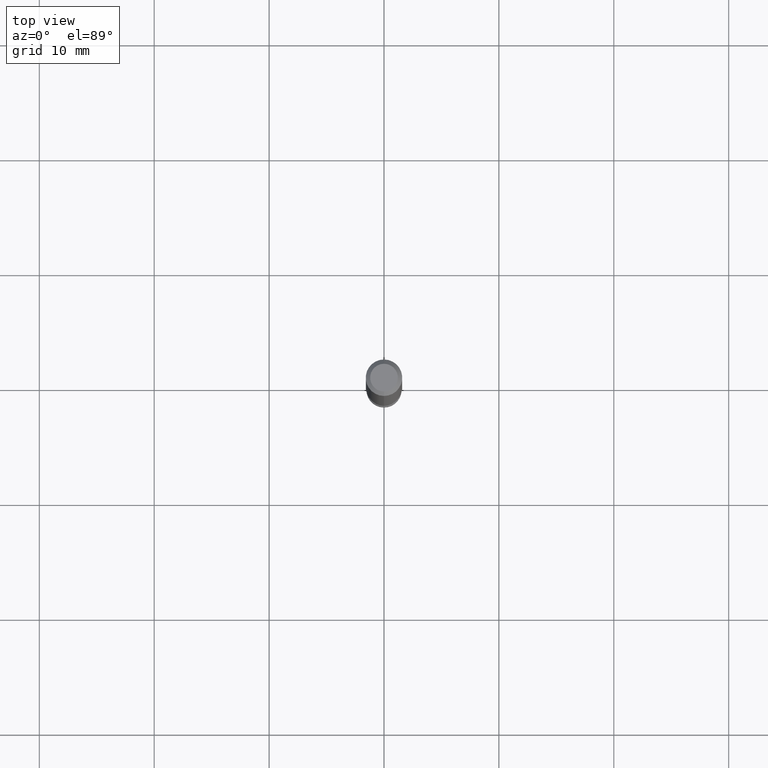
[diagram: clean part render]
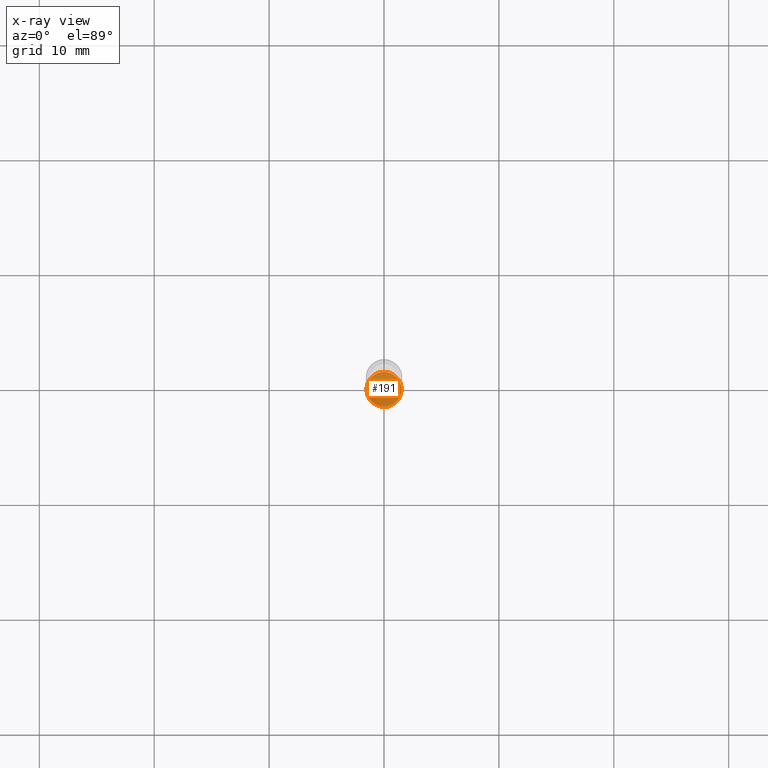
[diagram: x-ray — body ghosted, one internal face saturated and labeled with its STEP entity id]
A machine part, top view, then the same camera in x-ray: the body is ghosted and one INTERNAL B-rep face — a face not visible from any outside direction — is saturated and labeled: STEP entity #191.
In plain terms, the highlighted planar face has unit normal (-0, 0, 1).
Its self-contained STEP definition (entity closure, byte-faithful):
#23 = VERTEX_POINT ( 'NONE', #457 ) ;
#30 = DIRECTION ( 'NONE',  ( -2.445516459781718316E-29, 3.491413096180566537E-15, 1.000000000000000000 ) ) ;
#34 = CARTESIAN_POINT ( 'NONE',  ( 4.263256414561168444E-16, 0.05999999999999190703, -2.320000000000000284 ) ) ;
#72 = EDGE_CURVE ( 'NONE', #23, #129, #201, .T. ) ;
#111 = CARTESIAN_POINT ( 'NONE',  ( 5.673598186693586539E-29, -8.100078383138915375E-15, -2.320000000000000284 ) ) ;
#129 = VERTEX_POINT ( 'NONE', #34 ) ;
#133 = EDGE_LOOP ( 'NONE', ( #326, #294 ) ) ;
#166 = FACE_OUTER_BOUND ( 'NONE', #133, .T. ) ;
#191 = ADVANCED_FACE ( 'NONE', ( #166 ), #348, .F. ) ;
#198 = EDGE_CURVE ( 'NONE', #129, #23, #412, .T. ) ;
#201 = CIRCLE ( 'NONE', #275, 0.05999999999999999778 ) ;
#212 = DIRECTION ( 'NONE',  ( -6.982962677686265922E-15, -1.000000000000000000, 4.553079989440439092E-15 ) ) ;
#262 = CARTESIAN_POINT ( 'NONE',  ( 4.189777606612326922E-16, 0.05999999999999190009, -2.320000000000000284 ) ) ;
#275 = AXIS2_PLACEMENT_3D ( 'NONE', #111, #291, #545 ) ;
#276 = AXIS2_PLACEMENT_3D ( 'NONE', #262, #557, #295 ) ;
#291 = DIRECTION ( 'NONE',  ( -2.445516459781718316E-29, 3.491413096180566537E-15, 1.000000000000000000 ) ) ;
#294 = ORIENTED_EDGE ( 'NONE', *, *, #198, .F. ) ;
#295 = DIRECTION ( 'NONE',  ( -6.982962677686265922E-15, -1.000000000000000000, 3.491413096180566537E-15 ) ) ;
#307 = CARTESIAN_POINT ( 'NONE',  ( 5.673598186693586539E-29, -8.100078383138915375E-15, -2.320000000000000284 ) ) ;
#326 = ORIENTED_EDGE ( 'NONE', *, *, #72, .F. ) ;
#348 = PLANE ( 'NONE',  #276 ) ;
#412 = CIRCLE ( 'NONE', #540, 0.05999999999999999778 ) ;
#457 = CARTESIAN_POINT ( 'NONE',  ( -4.189777606611192934E-16, -0.06000000000000810935, -2.319999999999999840 ) ) ;
#540 = AXIS2_PLACEMENT_3D ( 'NONE', #307, #30, #212 ) ;
#545 = DIRECTION ( 'NONE',  ( -6.982962677686265922E-15, -1.000000000000000000, 4.553079989440439092E-15 ) ) ;
#557 = DIRECTION ( 'NONE',  ( -2.445516459781717756E-29, 3.491413096180566537E-15, 1.000000000000000000 ) ) ;